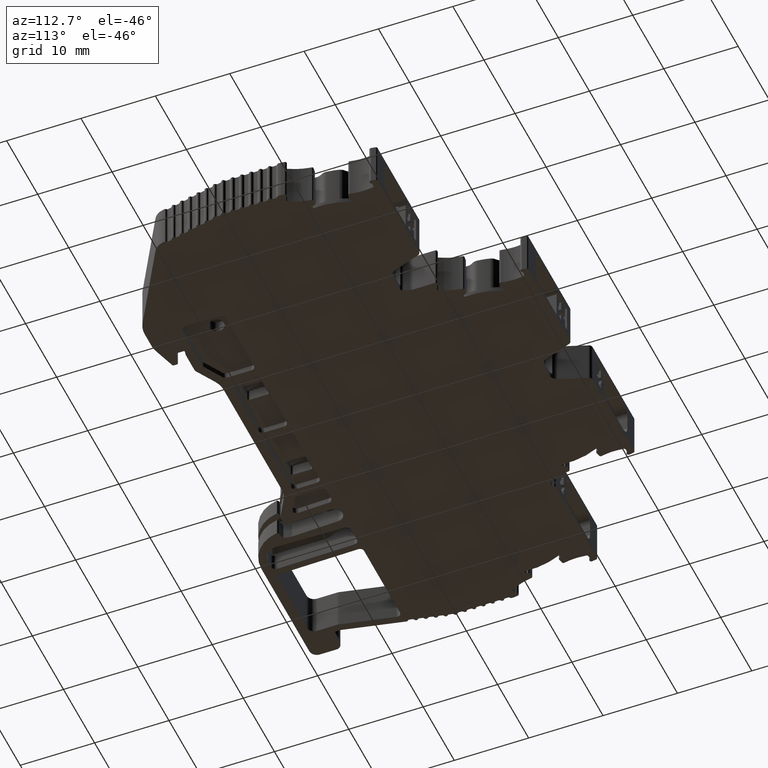
[diagram: clean part render]
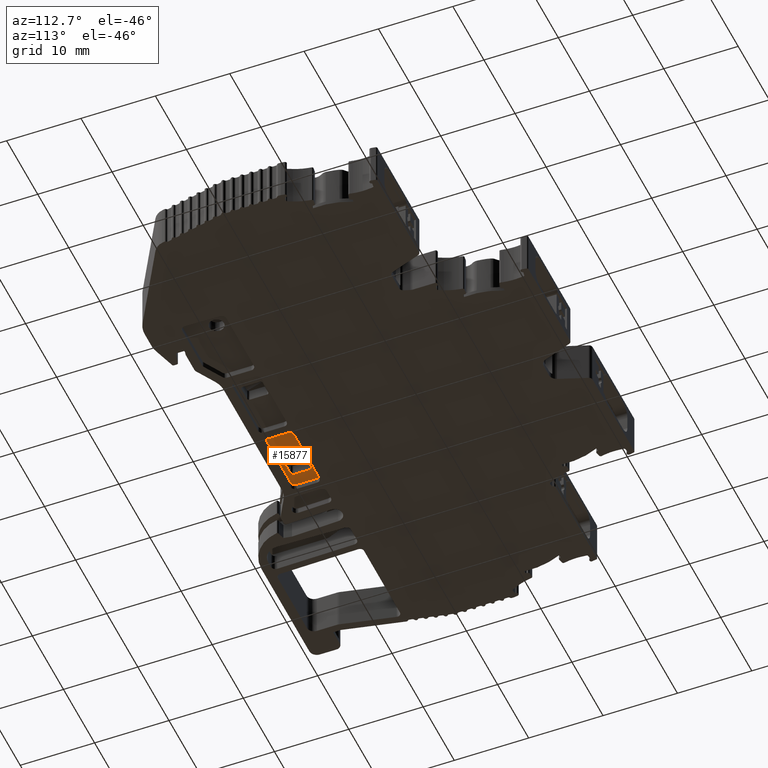
[diagram: same view with one face highlighted and labeled with its STEP entity id]
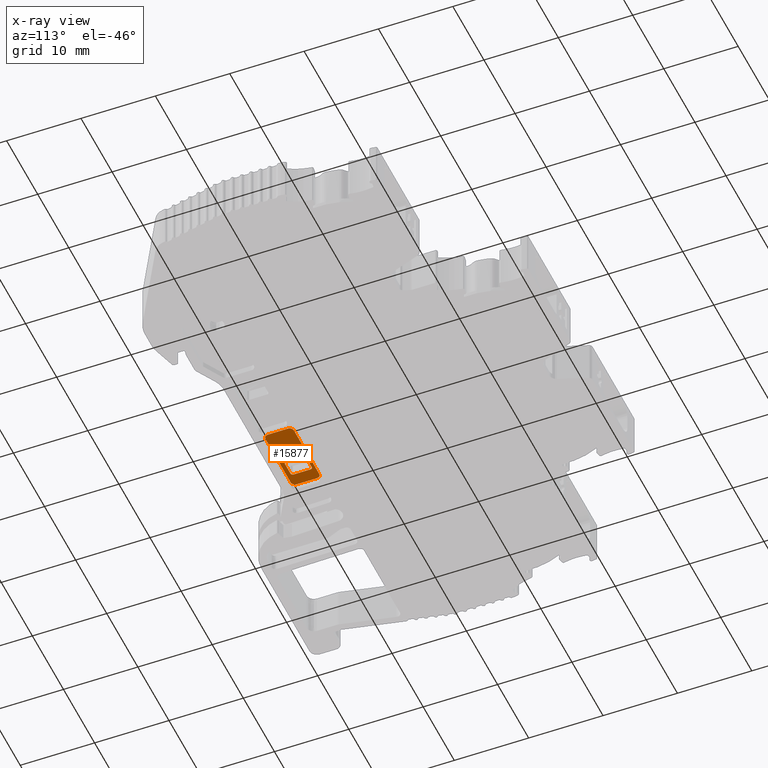
[diagram: x-ray of the same camera — body ghosted, the highlighted face saturated]
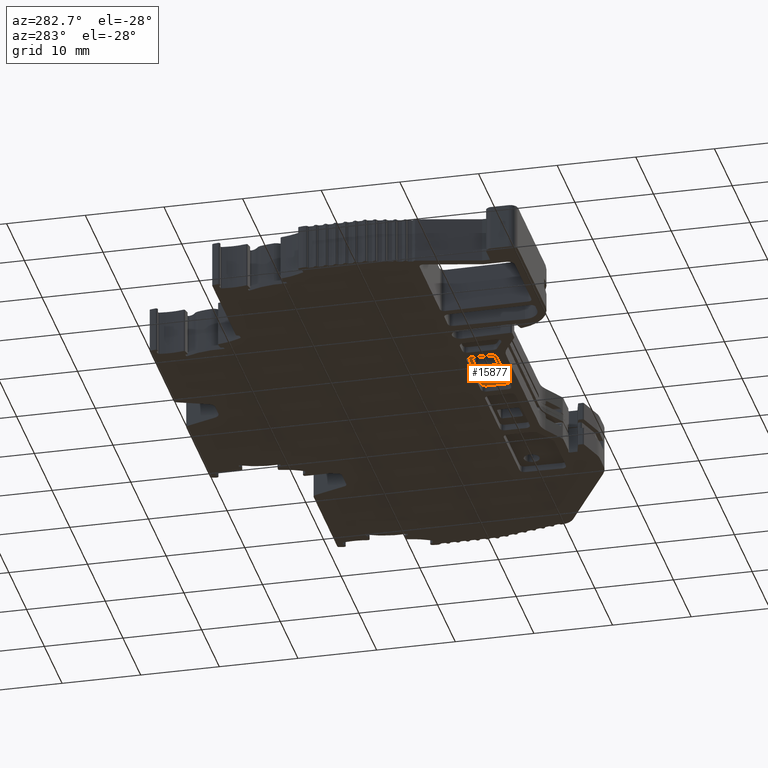
[diagram: same view with one face highlighted and labeled with its STEP entity id]
A machine part, auxiliary view. The second image highlights one B-rep face of the part: STEP entity #15877.
The next image is the same camera in x-ray: the body ghosted, the highlighted face saturated — about 0% of this face is hidden behind the body in this view.
A second angle (auxiliary view) of the same face is appended — the face is thin or edge-on in the first view.
In plain terms, the highlighted planar face has unit normal (0, 0, -1).
Its self-contained STEP definition (entity closure, byte-faithful):
#82 = VERTEX_POINT ( 'NONE', #1241 ) ;
#183 = VECTOR ( 'NONE', #30466, 1000.000000000000000 ) ;
#326 = ORIENTED_EDGE ( 'NONE', *, *, #9455, .T. ) ;
#932 = CARTESIAN_POINT ( 'NONE',  ( 1928.829004972775010, 482.2181482293690351, -2.125000000000000000 ) ) ;
#983 = AXIS2_PLACEMENT_3D ( 'NONE', #10468, #19919, #8585 ) ;
#1241 = CARTESIAN_POINT ( 'NONE',  ( 1919.546835802924988, 482.2181482293690351, -2.125000000000000000 ) ) ;
#1424 = CARTESIAN_POINT ( 'NONE',  ( 1921.543322521910113, 479.8193883771210153, -2.125000000000000000 ) ) ;
#1505 = VERTEX_POINT ( 'NONE', #24341 ) ;
#1577 = VECTOR ( 'NONE', #6105, 1000.000000000000000 ) ;
#1733 = EDGE_CURVE ( 'NONE', #11315, #1505, #12022, .T. ) ;
#1768 = VERTEX_POINT ( 'NONE', #3031 ) ;
#2276 = EDGE_CURVE ( 'NONE', #11038, #82, #11388, .T. ) ;
#2297 = DIRECTION ( 'NONE',  ( 0.000000000000000000, -1.000000000000000000, 0.000000000000000000 ) ) ;
#2729 = LINE ( 'NONE', #14810, #24777 ) ;
#2767 = DIRECTION ( 'NONE',  ( -1.000000000000000000, 0.000000000000000000, 0.000000000000000000 ) ) ;
#3031 = CARTESIAN_POINT ( 'NONE',  ( 1923.343322521915070, 482.3960073511400424, -2.125000000000000000 ) ) ;
#3134 = VERTEX_POINT ( 'NONE', #27227 ) ;
#3140 = DIRECTION ( 'NONE',  ( -1.000000000000000000, 0.000000000000000000, 0.000000000000000000 ) ) ;
#3955 = VECTOR ( 'NONE', #16463, 1000.000000000000000 ) ;
#4011 = DIRECTION ( 'NONE',  ( -1.000000000000000000, 0.000000000000000000, 0.000000000000000000 ) ) ;
#4465 = CARTESIAN_POINT ( 'NONE',  ( 1921.266703547885072, 482.1193883771239825, -2.125000000000000000 ) ) ;
#4572 = DIRECTION ( 'NONE',  ( -1.000000000000000000, 0.000000000000000000, 0.000000000000000000 ) ) ;
#4854 = VERTEX_POINT ( 'NONE', #12914 ) ;
#4863 = CIRCLE ( 'NONE', #5859, 0.2766189740155411414 ) ;
#5064 = DIRECTION ( 'NONE',  ( 1.000000000000000000, 0.000000000000000000, 0.000000000000000000 ) ) ;
#5339 = CARTESIAN_POINT ( 'NONE',  ( 1920.132871750980030, 479.5626214050200247, -2.125000000000000000 ) ) ;
#5859 = AXIS2_PLACEMENT_3D ( 'NONE', #14699, #17015, #2767 ) ;
#6105 = DIRECTION ( 'NONE',  ( 1.000000000000000000, -0.000000000000000000, -0.000000000000000000 ) ) ;
#6979 = AXIS2_PLACEMENT_3D ( 'NONE', #16329, #25788, #4572 ) ;
#7508 = EDGE_CURVE ( 'NONE', #1505, #11038, #7643, .T. ) ;
#7643 = LINE ( 'NONE', #17074, #3955 ) ;
#8061 = EDGE_CURVE ( 'NONE', #14301, #27692, #22300, .T. ) ;
#8585 = DIRECTION ( 'NONE',  ( -1.000000000000000000, 1.083657466793839709E-11, 0.000000000000000000 ) ) ;
#8664 = CARTESIAN_POINT ( 'NONE',  ( 1928.242969024719969, 482.2181482293690351, -2.125000000000000000 ) ) ;
#8770 = ORIENTED_EDGE ( 'NONE', *, *, #20334, .F. ) ;
#8832 = ORIENTED_EDGE ( 'NONE', *, *, #9143, .F. ) ;
#9143 = EDGE_CURVE ( 'NONE', #27668, #11065, #2729, .T. ) ;
#9264 = DIRECTION ( 'NONE',  ( -1.000000000000000000, 0.000000000000000000, 0.000000000000000000 ) ) ;
#9455 = EDGE_CURVE ( 'NONE', #12104, #1768, #28245, .T. ) ;
#9522 = LINE ( 'NONE', #18656, #24547 ) ;
#9589 = ORIENTED_EDGE ( 'NONE', *, *, #1733, .F. ) ;
#9690 = ORIENTED_EDGE ( 'NONE', *, *, #8061, .T. ) ;
#9692 = ORIENTED_EDGE ( 'NONE', *, *, #2276, .F. ) ;
#9867 = CARTESIAN_POINT ( 'NONE',  ( 1921.543322521910113, 479.5427694031059787, -2.125000000000000000 ) ) ;
#10249 = VERTEX_POINT ( 'NONE', #23408 ) ;
#10468 = CARTESIAN_POINT ( 'NONE',  ( 1921.543322521900109, 482.1193883771250057, -2.125000000000000000 ) ) ;
#10949 = ORIENTED_EDGE ( 'NONE', *, *, #24770, .F. ) ;
#11038 = VERTEX_POINT ( 'NONE', #25603 ) ;
#11065 = VERTEX_POINT ( 'NONE', #18307 ) ;
#11214 = AXIS2_PLACEMENT_3D ( 'NONE', #15859, #25478, #27796 ) ;
#11315 = VERTEX_POINT ( 'NONE', #932 ) ;
#11388 = CIRCLE ( 'NONE', #12383, 0.5860359480573951174 ) ;
#11582 = LINE ( 'NONE', #21038, #183 ) ;
#11647 = FACE_OUTER_BOUND ( 'NONE', #24871, .T. ) ;
#11887 = DIRECTION ( 'NONE',  ( -0.000000000000000000, -0.000000000000000000, 1.000000000000000000 ) ) ;
#11938 = LINE ( 'NONE', #21402, #14893 ) ;
#12022 = CIRCLE ( 'NONE', #29323, 0.5860359480573951174 ) ;
#12104 = VERTEX_POINT ( 'NONE', #15926 ) ;
#12313 = CIRCLE ( 'NONE', #29114, 0.5860359480573951174 ) ;
#12383 = AXIS2_PLACEMENT_3D ( 'NONE', #24383, #16935, #3140 ) ;
#12840 = EDGE_CURVE ( 'NONE', #14301, #1768, #13678, .T. ) ;
#12914 = CARTESIAN_POINT ( 'NONE',  ( 1928.829004972775010, 479.5626214050200247, -2.125000000000000000 ) ) ;
#13414 = ORIENTED_EDGE ( 'NONE', *, *, #12840, .F. ) ;
#13447 = CARTESIAN_POINT ( 'NONE',  ( 1920.132871750980030, 478.9765854569630505, -2.125000000000000000 ) ) ;
#13549 = EDGE_CURVE ( 'NONE', #23594, #25574, #26947, .T. ) ;
#13678 = LINE ( 'NONE', #29945, #1577 ) ;
#13704 = EDGE_LOOP ( 'NONE', ( #13414, #9690, #23150, #25766, #19904, #24559, #28102, #326 ) ) ;
#14287 = ORIENTED_EDGE ( 'NONE', *, *, #7508, .F. ) ;
#14301 = VERTEX_POINT ( 'NONE', #15210 ) ;
#14699 = CARTESIAN_POINT ( 'NONE',  ( 1923.343322521915070, 479.8193883771210153, -2.125000000000000000 ) ) ;
#14810 = CARTESIAN_POINT ( 'NONE',  ( 1928.242969024719969, 478.9765854569630505, -2.125000000000000000 ) ) ;
#14893 = VECTOR ( 'NONE', #18753, 1000.000000000000000 ) ;
#14925 = VECTOR ( 'NONE', #24635, 1000.000000000000000 ) ;
#15166 = CARTESIAN_POINT ( 'NONE',  ( 1920.132871750980030, 479.5427694031059787, -2.125000000000000000 ) ) ;
#15210 = CARTESIAN_POINT ( 'NONE',  ( 1921.543322521900109, 482.3960073511400424, -2.125000000000000000 ) ) ;
#15859 = CARTESIAN_POINT ( 'NONE',  ( 1928.242969024719969, 479.5626214050200247, -2.125000000000000000 ) ) ;
#15877 = ADVANCED_FACE ( 'NONE', ( #23426, #11647 ), #21095, .T. ) ;
#15926 = CARTESIAN_POINT ( 'NONE',  ( 1923.619941495930107, 482.1193883771250057, -2.125000000000000000 ) ) ;
#15942 = DIRECTION ( 'NONE',  ( -0.000000000000000000, -0.000000000000000000, 1.000000000000000000 ) ) ;
#16108 = AXIS2_PLACEMENT_3D ( 'NONE', #30213, #20628, #28059 ) ;
#16329 = CARTESIAN_POINT ( 'NONE',  ( 1923.343322521915070, 482.1193883771250057, -2.125000000000000000 ) ) ;
#16463 = DIRECTION ( 'NONE',  ( -1.000000000000000000, 0.000000000000000000, 0.000000000000000000 ) ) ;
#16935 = DIRECTION ( 'NONE',  ( -0.000000000000000000, -0.000000000000000000, 1.000000000000000000 ) ) ;
#17015 = DIRECTION ( 'NONE',  ( -0.000000000000000000, -0.000000000000000000, 1.000000000000000000 ) ) ;
#17074 = CARTESIAN_POINT ( 'NONE',  ( 1920.132871750980030, 482.8041841774270324, -2.125000000000000000 ) ) ;
#17078 = ORIENTED_EDGE ( 'NONE', *, *, #25857, .F. ) ;
#17625 = EDGE_CURVE ( 'NONE', #82, #3134, #26007, .T. ) ;
#18307 = CARTESIAN_POINT ( 'NONE',  ( 1928.242969024719969, 478.9765854569630505, -2.125000000000000000 ) ) ;
#18569 = VECTOR ( 'NONE', #2297, 1000.000000000000000 ) ;
#18656 = CARTESIAN_POINT ( 'NONE',  ( 1928.829004972775010, 482.2181482293690351, -2.125000000000000000 ) ) ;
#18746 = DIRECTION ( 'NONE',  ( -0.000000000000000000, -0.000000000000000000, 1.000000000000000000 ) ) ;
#18753 = DIRECTION ( 'NONE',  ( -3.092764140023395042E-12, 1.000000000000000000, -0.000000000000000000 ) ) ;
#18792 = CIRCLE ( 'NONE', #30153, 0.2766189740155411414 ) ;
#19063 = EDGE_CURVE ( 'NONE', #12104, #20478, #11582, .T. ) ;
#19904 = ORIENTED_EDGE ( 'NONE', *, *, #13549, .F. ) ;
#19919 = DIRECTION ( 'NONE',  ( -0.000000000000000000, -0.000000000000000000, 1.000000000000000000 ) ) ;
#19953 = EDGE_CURVE ( 'NONE', #23594, #20478, #4863, .T. ) ;
#20192 = CARTESIAN_POINT ( 'NONE',  ( 1923.619941495930107, 479.8193883771210153, -2.125000000000000000 ) ) ;
#20286 = ORIENTED_EDGE ( 'NONE', *, *, #17625, .F. ) ;
#20334 = EDGE_CURVE ( 'NONE', #3134, #27668, #12313, .T. ) ;
#20478 = VERTEX_POINT ( 'NONE', #20192 ) ;
#20628 = DIRECTION ( 'NONE',  ( 0.000000000000000000, 0.000000000000000000, -1.000000000000000000 ) ) ;
#21038 = CARTESIAN_POINT ( 'NONE',  ( 1923.619941495930107, 479.5626214050200247, -2.125000000000000000 ) ) ;
#21095 = PLANE ( 'NONE',  #16108 ) ;
#21402 = CARTESIAN_POINT ( 'NONE',  ( 1921.266703547889847, 479.5626214050230374, -2.125000000000000000 ) ) ;
#22133 = EDGE_CURVE ( 'NONE', #10249, #25574, #18792, .T. ) ;
#22300 = CIRCLE ( 'NONE', #983, 0.2766189740155411414 ) ;
#23150 = ORIENTED_EDGE ( 'NONE', *, *, #28580, .F. ) ;
#23408 = CARTESIAN_POINT ( 'NONE',  ( 1921.266703547889847, 479.8193883771199921, -2.125000000000000000 ) ) ;
#23426 = FACE_BOUND ( 'NONE', #13704, .T. ) ;
#23594 = VERTEX_POINT ( 'NONE', #25584 ) ;
#24341 = CARTESIAN_POINT ( 'NONE',  ( 1928.242969024719969, 482.8041841774270324, -2.125000000000000000 ) ) ;
#24383 = CARTESIAN_POINT ( 'NONE',  ( 1920.132871750980030, 482.2181482293690351, -2.125000000000000000 ) ) ;
#24547 = VECTOR ( 'NONE', #25942, 1000.000000000000000 ) ;
#24559 = ORIENTED_EDGE ( 'NONE', *, *, #19953, .T. ) ;
#24584 = CIRCLE ( 'NONE', #11214, 0.5860359480573951174 ) ;
#24635 = DIRECTION ( 'NONE',  ( -1.000000000000000000, -0.000000000000000000, -0.000000000000000000 ) ) ;
#24770 = EDGE_CURVE ( 'NONE', #11065, #4854, #24584, .T. ) ;
#24777 = VECTOR ( 'NONE', #5064, 1000.000000000000000 ) ;
#24871 = EDGE_LOOP ( 'NONE', ( #10949, #8832, #8770, #20286, #9692, #14287, #9589, #17078 ) ) ;
#25478 = DIRECTION ( 'NONE',  ( -0.000000000000000000, -0.000000000000000000, 1.000000000000000000 ) ) ;
#25574 = VERTEX_POINT ( 'NONE', #9867 ) ;
#25584 = CARTESIAN_POINT ( 'NONE',  ( 1923.343322521915070, 479.5427694031059787, -2.125000000000000000 ) ) ;
#25603 = CARTESIAN_POINT ( 'NONE',  ( 1920.132871750980030, 482.8041841774270324, -2.125000000000000000 ) ) ;
#25766 = ORIENTED_EDGE ( 'NONE', *, *, #22133, .T. ) ;
#25788 = DIRECTION ( 'NONE',  ( -0.000000000000000000, -0.000000000000000000, 1.000000000000000000 ) ) ;
#25857 = EDGE_CURVE ( 'NONE', #4854, #11315, #9522, .T. ) ;
#25860 = CARTESIAN_POINT ( 'NONE',  ( 1919.546835802924988, 479.5626214050200247, -2.125000000000000000 ) ) ;
#25942 = DIRECTION ( 'NONE',  ( 0.000000000000000000, 1.000000000000000000, 0.000000000000000000 ) ) ;
#26007 = LINE ( 'NONE', #25860, #18569 ) ;
#26947 = LINE ( 'NONE', #15166, #14925 ) ;
#27227 = CARTESIAN_POINT ( 'NONE',  ( 1919.546835802924988, 479.5626214050200247, -2.125000000000000000 ) ) ;
#27668 = VERTEX_POINT ( 'NONE', #13447 ) ;
#27692 = VERTEX_POINT ( 'NONE', #4465 ) ;
#27796 = DIRECTION ( 'NONE',  ( -1.000000000000000000, 0.000000000000000000, 0.000000000000000000 ) ) ;
#28059 = DIRECTION ( 'NONE',  ( -1.000000000000000000, 0.000000000000000000, 0.000000000000000000 ) ) ;
#28102 = ORIENTED_EDGE ( 'NONE', *, *, #19063, .F. ) ;
#28245 = CIRCLE ( 'NONE', #6979, 0.2766189740155411414 ) ;
#28580 = EDGE_CURVE ( 'NONE', #10249, #27692, #11938, .T. ) ;
#29114 = AXIS2_PLACEMENT_3D ( 'NONE', #5339, #11887, #9264 ) ;
#29323 = AXIS2_PLACEMENT_3D ( 'NONE', #8664, #15942, #4011 ) ;
#29945 = CARTESIAN_POINT ( 'NONE',  ( 1920.132871750980030, 482.3960073511400424, -2.125000000000000000 ) ) ;
#30153 = AXIS2_PLACEMENT_3D ( 'NONE', #1424, #18746, #30657 ) ;
#30213 = CARTESIAN_POINT ( 'NONE',  ( 1920.132871750980030, 479.5626214050200247, -2.125000000000000000 ) ) ;
#30466 = DIRECTION ( 'NONE',  ( -0.000000000000000000, -1.000000000000000000, -0.000000000000000000 ) ) ;
#30657 = DIRECTION ( 'NONE',  ( -1.000000000000000000, -3.612191555979465562E-12, 0.000000000000000000 ) ) ;